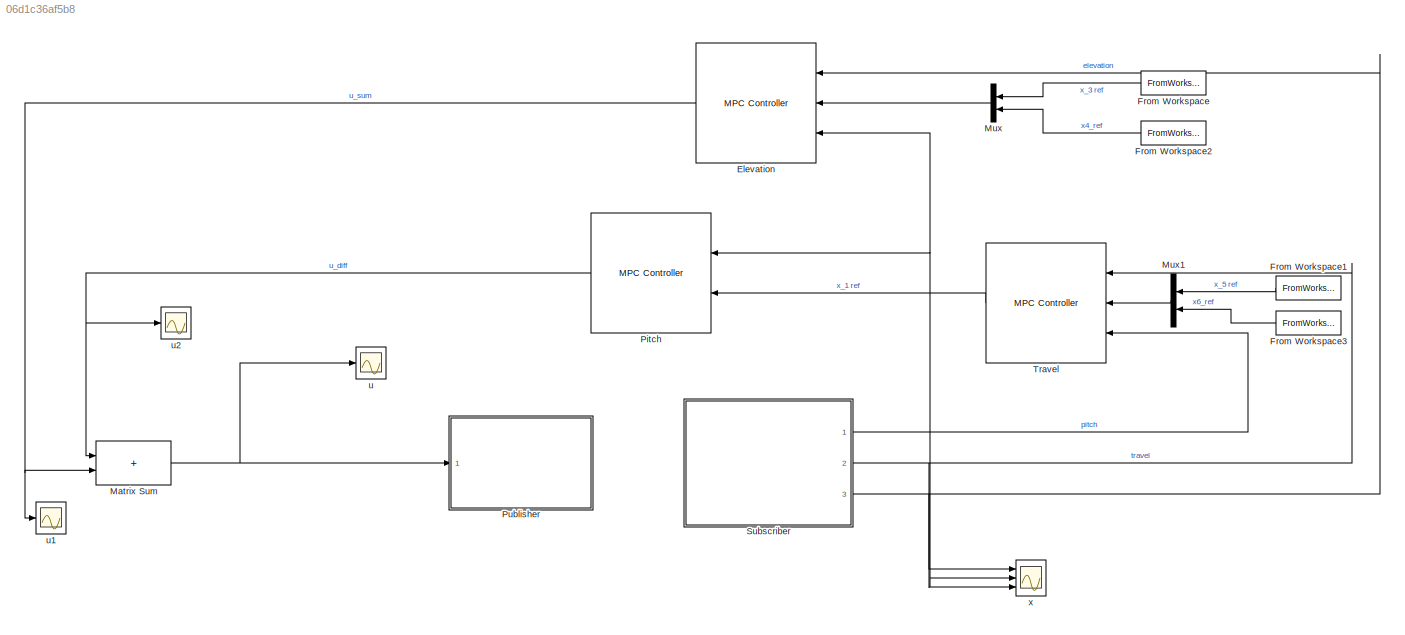
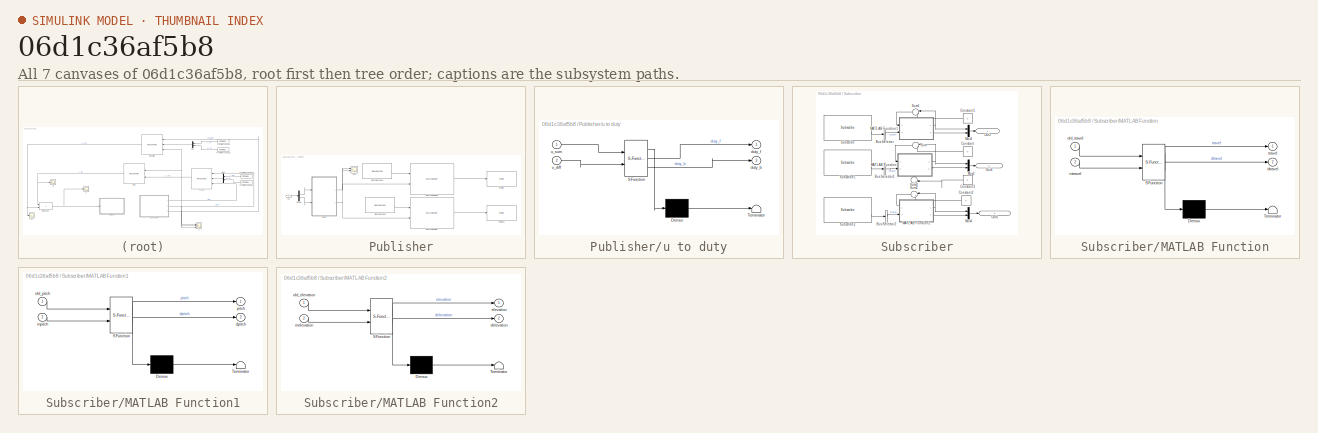
[diagram: thumbnail index - all 7 canvases of the model, root first then tree order]
MODEL slx_06d1c36af5b8
KIND model
CONFIG AbsTol = auto
CONFIG EnableMultiTasking = off
CONFIG FixedStep = auto
CONFIG MaxStep = auto
CONFIG MinStep = auto
CONFIG RelTol = 1e-3
CONFIG SampleTimeConstraint = Unconstrained
CONFIG SolverName = VariableStepAuto
CONFIG StartTime = 0.0
CONFIG StopTime = 10.0
BLOCK [Reference] Elevation  REF=mpclib/MPC Controller  (lib defined in mdl_ae329e0e0455)
  NameLocation = top
  Ports = [3, 1]
  SCDEnableBlockLinearizationSpecification = on
  SourceBlock = mpclib/MPC Controller
  SourceProductBaseCode = MP
  SourceType = MPC
BLOCK [FromWorkspace] From Workspace
  NameLocation = top
  OutputAfterFinalValue = Holding final value
  SampleTime = 0.1
  VariableName = x3_ref
BLOCK [FromWorkspace] From Workspace1
  NameLocation = top
  OutputAfterFinalValue = Holding final value
  SampleTime = 0.1
  VariableName = x5_ref
BLOCK [FromWorkspace] From Workspace2
  NameLocation = top
  VariableName = x4_ref
BLOCK [FromWorkspace] From Workspace3
  NameLocation = top
  VariableName = x6_ref
BLOCK [Sum] Matrix Sum
  IconShape = rectangular
  Ports = [2, 1]
BLOCK [Mux] Mux
  DisplayOption = bar
  Inputs = 2
  NameLocation = top
  Ports = [2, 1]
BLOCK [Mux] Mux1
  DisplayOption = bar
  Inputs = 2
  NameLocation = top
  Ports = [2, 1]
BLOCK [Reference] Pitch  REF=mpclib/MPC Controller  (lib defined in mdl_ae329e0e0455)
  NameLocation = top
  Ports = [2, 1]
  SCDEnableBlockLinearizationSpecification = on
  SourceBlock = mpclib/MPC Controller
  SourceProductBaseCode = MP
  SourceType = MPC
BLOCK [SubSystem] Publisher
  Ports = [1]
  RequestExecContextInheritance = off
BLOCK [Reference] Publisher/Blank Message  REF=robotlib/Blank Message
  Ports = [0, 1]
  SourceBlock = robotlib/Blank Message
  SourceProductBaseCode = RR
  SourceType = ROS Blank Message
BLOCK [Reference] Publisher/Blank Message1  REF=robotlib/Blank Message
  Ports = [0, 1]
  SourceBlock = robotlib/Blank Message
  SourceProductBaseCode = RR
  SourceType = ROS Blank Message
BLOCK [BusAssignment] Publisher/Bus Assignment
  AssignedSignals = Data
  Ports = [2, 1]
BLOCK [BusAssignment] Publisher/Bus Assignment1
  AssignedSignals = Data
  Ports = [2, 1]
BLOCK [Demux] Publisher/Demux
  Outputs = 2
  Ports = [1, 2]
BLOCK [Inport] Publisher/In1
  IconDisplay = Signal name
BLOCK [Reference] Publisher/Publish  REF=robotlib/Publish
  Ports = [1]
  SourceBlock = robotlib/Publish
  SourceProductBaseCode = RR
  SourceType = ROS Publish
BLOCK [Reference] Publisher/Publish1  REF=robotlib/Publish
  Ports = [1]
  SourceBlock = robotlib/Publish
  SourceProductBaseCode = RR
  SourceType = ROS Publish
BLOCK [Scope] Publisher/duty
  Floating = off
  NumInputPorts = 2
  Ports = [2]
  ScopeSpecificationString = Simulink.scopes.TimeScopeBlockCfg('CurrentConfiguration', extmgr.ConfigurationSet(extmgr.Configuration('Core','General UI',true),extmgr.Configuration('Core','Source UI',true),extmgr.Configuration('Sources','WiredSimulink',true,'DataLoggingVariableName','ScopeData3'),extmgr.Configuration('Visuals','Time Domain',true,'SerializedDisplays',{struct('MinYLimReal','0.04597','MaxYLimReal','0.06384','YLabe...<+1421ch>
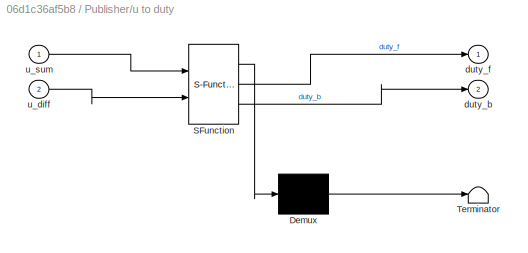
BLOCK [SubSystem] Publisher/u to duty
  ErrorFcn = Stateflow.Translate.translate
  PermitHierarchicalResolution = ExplicitOnly
  Ports = [2, 2]
  RequestExecContextInheritance = off
  SFBlockType = MATLAB Function
  TreatAsAtomicUnit = on
BLOCK [Demux] Publisher/u to duty/ Demux 
  Outputs = 1
  Ports = [1, 1]
BLOCK [S-Function] Publisher/u to duty/ SFunction 
  EnableBusSupport = on
  FunctionName = sf_sfun
  PortCounts = [2 3]
  Ports = [2, 3]
  SFcnIsStateOwnerBlock = off
  SFunctionDeploymentMode = off
  Tag = Stateflow S-Function 2
BLOCK [Terminator] Publisher/u to duty/ Terminator 
BLOCK [Outport] Publisher/u to duty/duty_b
  Port = 2
BLOCK [Outport] Publisher/u to duty/duty_f
BLOCK [Inport] Publisher/u to duty/u_diff
  Port = 2
BLOCK [Inport] Publisher/u to duty/u_sum
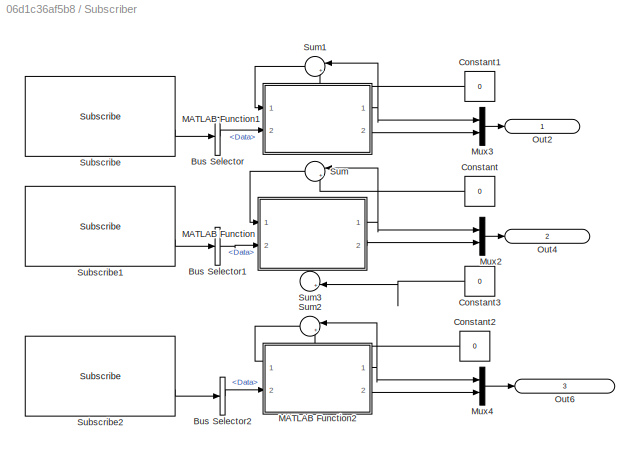
BLOCK [SubSystem] Subscriber
  Ports = [0, 3]
  RequestExecContextInheritance = off
BLOCK [BusSelector] Subscriber/Bus Selector
  OutputSignals = Data
  Ports = [1, 1]
BLOCK [BusSelector] Subscriber/Bus Selector1
  OutputSignals = Data
  Ports = [1, 1]
BLOCK [BusSelector] Subscriber/Bus Selector2
  OutputSignals = Data
  Ports = [1, 1]
BLOCK [Constant] Subscriber/Constant
  NameLocation = top
  Value = 0
BLOCK [Constant] Subscriber/Constant1
  NameLocation = top
  Value = 0
BLOCK [Constant] Subscriber/Constant2
  NameLocation = top
  Value = 0
BLOCK [Constant] Subscriber/Constant3
  NameLocation = top
  Value = 0
BLOCK [SubSystem] Subscriber/MATLAB Function
  ErrorFcn = Stateflow.Translate.translate
  PermitHierarchicalResolution = ExplicitOnly
  Ports = [2, 2]
  RequestExecContextInheritance = off
  SFBlockType = MATLAB Function
  TreatAsAtomicUnit = on
BLOCK [Demux] Subscriber/MATLAB Function/ Demux 
  Outputs = 1
  Ports = [1, 1]
BLOCK [S-Function] Subscriber/MATLAB Function/ SFunction 
  EnableBusSupport = on
  FunctionName = sf_sfun
  PortCounts = [2 3]
  Ports = [2, 3]
  SFcnIsStateOwnerBlock = off
  SFunctionDeploymentMode = off
  Tag = Stateflow S-Function 1
BLOCK [Terminator] Subscriber/MATLAB Function/ Terminator 
BLOCK [Outport] Subscriber/MATLAB Function/dtravel
  Port = 2
BLOCK [Inport] Subscriber/MATLAB Function/mtravel
  Port = 2
BLOCK [Inport] Subscriber/MATLAB Function/old_travel
BLOCK [Outport] Subscriber/MATLAB Function/travel
BLOCK [SubSystem] Subscriber/MATLAB Function1
  ErrorFcn = Stateflow.Translate.translate
  PermitHierarchicalResolution = ExplicitOnly
  Ports = [2, 2]
  RequestExecContextInheritance = off
  SFBlockType = MATLAB Function
  TreatAsAtomicUnit = on
BLOCK [Demux] Subscriber/MATLAB Function1/ Demux 
  Outputs = 1
  Ports = [1, 1]
BLOCK [S-Function] Subscriber/MATLAB Function1/ SFunction 
  EnableBusSupport = on
  FunctionName = sf_sfun
  PortCounts = [2 3]
  Ports = [2, 3]
  SFcnIsStateOwnerBlock = off
  SFunctionDeploymentMode = off
  Tag = Stateflow S-Function 3
BLOCK [Terminator] Subscriber/MATLAB Function1/ Terminator 
BLOCK [Outport] Subscriber/MATLAB Function1/dpitch
  Port = 2
BLOCK [Inport] Subscriber/MATLAB Function1/mpitch
  Port = 2
BLOCK [Inport] Subscriber/MATLAB Function1/old_pitch
BLOCK [Outport] Subscriber/MATLAB Function1/pitch
BLOCK [SubSystem] Subscriber/MATLAB Function2
  ErrorFcn = Stateflow.Translate.translate
  PermitHierarchicalResolution = ExplicitOnly
  Ports = [2, 2]
  RequestExecContextInheritance = off
  SFBlockType = MATLAB Function
  TreatAsAtomicUnit = on
BLOCK [Demux] Subscriber/MATLAB Function2/ Demux 
  Outputs = 1
  Ports = [1, 1]
BLOCK [S-Function] Subscriber/MATLAB Function2/ SFunction 
  EnableBusSupport = on
  FunctionName = sf_sfun
  PortCounts = [2 3]
  Ports = [2, 3]
  SFcnIsStateOwnerBlock = off
  SFunctionDeploymentMode = off
  Tag = Stateflow S-Function 4
BLOCK [Terminator] Subscriber/MATLAB Function2/ Terminator 
BLOCK [Outport] Subscriber/MATLAB Function2/delevation
  Port = 2
BLOCK [Outport] Subscriber/MATLAB Function2/elevation
BLOCK [Inport] Subscriber/MATLAB Function2/melevation
  Port = 2
BLOCK [Inport] Subscriber/MATLAB Function2/old_elevation
BLOCK [Mux] Subscriber/Mux2
  DisplayOption = bar
  Inputs = 2
  Ports = [2, 1]
BLOCK [Mux] Subscriber/Mux3
  DisplayOption = bar
  Inputs = 2
  Ports = [2, 1]
BLOCK [Mux] Subscriber/Mux4
  DisplayOption = bar
  Inputs = 2
  Ports = [2, 1]
BLOCK [Outport] Subscriber/Out2
  IconDisplay = Signal name
BLOCK [Outport] Subscriber/Out4
  IconDisplay = Signal name
  Port = 2
BLOCK [Outport] Subscriber/Out6
  IconDisplay = Signal name
  Port = 3
BLOCK [Reference] Subscriber/Subscribe  REF=robotlib/Subscribe
  Ports = [0, 2]
  SourceBlock = robotlib/Subscribe
  SourceProductBaseCode = RR
  SourceType = ROS Subscribe
BLOCK [Reference] Subscriber/Subscribe1  REF=robotlib/Subscribe
  Ports = [0, 2]
  SourceBlock = robotlib/Subscribe
  SourceProductBaseCode = RR
  SourceType = ROS Subscribe
BLOCK [Reference] Subscriber/Subscribe2  REF=robotlib/Subscribe
  Ports = [0, 2]
  SourceBlock = robotlib/Subscribe
  SourceProductBaseCode = RR
  SourceType = ROS Subscribe
BLOCK [Sum] Subscriber/Sum
  Inputs = |++
  NameLocation = top
  Ports = [2, 1]
BLOCK [Sum] Subscriber/Sum1
  Inputs = |++
  NameLocation = top
  Ports = [2, 1]
BLOCK [Sum] Subscriber/Sum2
  Inputs = |++
  NameLocation = top
  Ports = [2, 1]
BLOCK [Sum] Subscriber/Sum3
  Inputs = |++
  NameLocation = top
  Ports = [2, 1]
BLOCK [Reference] Travel  REF=mpclib/MPC Controller  (lib defined in mdl_ae329e0e0455)
  NameLocation = top
  Ports = [3, 1]
  SCDEnableBlockLinearizationSpecification = on
  SourceBlock = mpclib/MPC Controller
  SourceProductBaseCode = MP
  SourceType = MPC
BLOCK [Scope] u
  Floating = off
  NumInputPorts = 1
  Ports = [1]
  ScopeSpecificationString = Simulink.scopes.TimeScopeBlockCfg('CurrentConfiguration', extmgr.ConfigurationSet(extmgr.Configuration('Core','General UI',true),extmgr.Configuration('Core','Source UI',true),extmgr.Configuration('Sources','WiredSimulink',true,'DataLoggingVariableName','ScopeData2'),extmgr.Configuration('Visuals','Time Domain',true,'SerializedDisplays',{struct('MinYLimReal','-1.00497','MaxYLimReal','4.04472','YLab...<+1524ch>
BLOCK [Scope] u1
  Floating = off
  NumInputPorts = 1
  Ports = [1]
  ScopeSpecificationString = Simulink.scopes.TimeScopeBlockCfg('CurrentConfiguration', extmgr.ConfigurationSet(extmgr.Configuration('Core','General UI',true),extmgr.Configuration('Core','Source UI',true),extmgr.Configuration('Sources','WiredSimulink',true,'DataLoggingVariableName','ScopeData1'),extmgr.Configuration('Visuals','Time Domain',true,'SerializedDisplays',{struct('MinYLimReal','-0.37997','MaxYLimReal','3.41972','YLab...<+1513ch>
BLOCK [Scope] u2
  Floating = off
  NumInputPorts = 1
  Ports = [1]
  ScopeSpecificationString = Simulink.scopes.TimeScopeBlockCfg('CurrentConfiguration', extmgr.ConfigurationSet(extmgr.Configuration('Core','General UI',true),extmgr.Configuration('Core','Source UI',true),extmgr.Configuration('Sources','WiredSimulink',true,'DataLoggingVariableName','ScopeData2'),extmgr.Configuration('Visuals','Time Domain',true,'SerializedDisplays',{struct('MinYLimReal','-0.75','MaxYLimReal','1.75','YLabelReal...<+1497ch>
BLOCK [Scope] x
  Floating = off
  NumInputPorts = 3
  Ports = [3]
  ScopeSpecificationString = Simulink.scopes.TimeScopeBlockCfg('CurrentConfiguration', extmgr.ConfigurationSet(extmgr.Configuration('Core','General UI',true),extmgr.Configuration('Core','Source UI',true),extmgr.Configuration('Sources','WiredSimulink',true,'DataLoggingVariableName','ScopeData1'),extmgr.Configuration('Visuals','Time Domain',true,'SerializedDisplays',{struct('MinYLimReal','-1.00569','MaxYLimReal','0.96363','YLab...<+1742ch>
NET Elevation:1 -> Matrix Sum:2, u1:1
LINE From Workspace1:1 -> Mux1:1
LINE From Workspace2:1 -> Mux:2
LINE From Workspace3:1 -> Mux1:2
LINE From Workspace:1 -> Mux:1
NET Matrix Sum:1 -> Publisher:1, u:1
LINE Mux1:1 -> Travel:2
LINE Mux:1 -> Elevation:2
NET Pitch:1 -> Matrix Sum:1, u2:1
LINE Publisher/Blank Message1:1 -> Publisher/Bus Assignment1:1
LINE Publisher/Blank Message:1 -> Publisher/Bus Assignment:1
LINE Publisher/Bus Assignment1:1 -> Publisher/Publish:1
LINE Publisher/Bus Assignment:1 -> Publisher/Publish1:1
LINE Publisher/Demux:1 -> Publisher/u to duty:1
LINE Publisher/Demux:2 -> Publisher/u to duty:2
LINE Publisher/In1:1 -> Publisher/Demux:1
NET Publisher/u to duty:1 -> Publisher/Bus Assignment1:2, Publisher/duty:1
NET Publisher/u to duty:2 -> Publisher/Bus Assignment:2, Publisher/duty:2
LINE Subscriber/Bus Selector1:1 -> Subscriber/MATLAB Function:2
LINE Subscriber/Bus Selector2:1 -> Subscriber/MATLAB Function2:2
LINE Subscriber/Bus Selector:1 -> Subscriber/MATLAB Function1:2
LINE Subscriber/Constant1:1 -> Subscriber/Sum1:2
LINE Subscriber/Constant2:1 -> Subscriber/Sum2:2
LINE Subscriber/Constant3:1 -> Subscriber/Sum3:2
LINE Subscriber/Constant:1 -> Subscriber/Sum:2
NET Subscriber/MATLAB Function1:1 -> Subscriber/Mux3:1, Subscriber/Sum1:1
LINE Subscriber/MATLAB Function1:2 -> Subscriber/Mux3:2
NET Subscriber/MATLAB Function2:1 -> Subscriber/Mux4:1, Subscriber/Sum2:1
LINE Subscriber/MATLAB Function2:2 -> Subscriber/Mux4:2
NET Subscriber/MATLAB Function:1 -> Subscriber/Mux2:1, Subscriber/Sum:1
LINE Subscriber/MATLAB Function:2 -> Subscriber/Mux2:2
LINE Subscriber/Mux2:1 -> Subscriber/Out4:1
LINE Subscriber/Mux3:1 -> Subscriber/Out2:1
LINE Subscriber/Mux4:1 -> Subscriber/Out6:1
LINE Subscriber/Subscribe1:2 -> Subscriber/Bus Selector1:1
LINE Subscriber/Subscribe2:2 -> Subscriber/Bus Selector2:1
LINE Subscriber/Subscribe:2 -> Subscriber/Bus Selector:1
LINE Subscriber/Sum1:1 -> Subscriber/MATLAB Function1:1
LINE Subscriber/Sum2:1 -> Subscriber/MATLAB Function2:1
LINE Subscriber/Sum:1 -> Subscriber/MATLAB Function:1
NET Subscriber:1 -> Elevation:3, Pitch:1, Travel:3, x:2
NET Subscriber:2 -> Travel:1, x:3
NET Subscriber:3 -> Elevation:1, x:1
LINE Travel:1 -> Pitch:2
note: NET lines group one-source signal fan-out (src -> all destinations, sorted); 1:1 wires keep LINE
CHART Subscriber/MATLAB Function states=1 transitions=1
  STATE_LABEL 'eML_blk_kernel()'
  STATE_LABEL 'SCRIPT:\nfunction [travel,dtravel] = fcn(old_travel,mtravel)\nhz = 10;\ntravel = mtravel;\nif travel == 0\n    old_travel = 0;\nend\ndtravel = (mtravel - old_travel) * hz;\n'
CHART Publisher/u to duty states=1 transitions=1
  STATE_LABEL 'eML_blk_kernel()'
  STATE_LABEL 'SCRIPT:\nfunction [duty_f , duty_b] = fcn(u_sum,u_diff)\n%sum/diff to forword/back\n% u_sum = u_f + u_b\n% u_diff = u_f - u_b\n% ∴\n% u_f = (u_sum + u_diff) / 2\n% u_b = (u_sum - u_diff) / 2\n\nu_f = (u_sum + u_diff) / 2;\nu_b = (u_sum - u_diff) / 2;\n\n%%\n%u to duty\n% 数値は片山の卒論fig4.3\nduty_f = (u_f + 3.3235) / 0.6386 /100 * 0.95;\nduty_b = (u_b + 3.7394) / 0.7158 /100 * 0.9;\n'
CHART Subscriber/MATLAB Function1 states=1 transitions=1
  STATE_LABEL 'eML_blk_kernel()'
  STATE_LABEL 'SCRIPT:\nfunction [pitch,dpitch] = fcn(old_pitch,mpitch)\nhz = 10;\n%pitch = mpitch.data;\npitch = mpitch * pi / 180;\nif pitch == 0\n    old_pitch = 0;\nend\ndpitch = (pitch - old_pitch) * hz;'
CHART Subscriber/MATLAB Function2 states=1 transitions=1
  STATE_LABEL 'eML_blk_kernel()'
  STATE_LABEL 'SCRIPT:\nfunction [elevation,delevation] = fcn(old_elevation,melevation)\nhz = 10;\n%elevation = melevation.data;\nelevation = melevation * pi / 180;\nif elevation == 0\n    old_elevation = 0;\nend\ndelevation = (elevation - old_elevation) * hz;'
CHART  states=0 transitions=0
CHART  states=0 transitions=0
CHART  states=0 transitions=0
CHART  states=0 transitions=0
